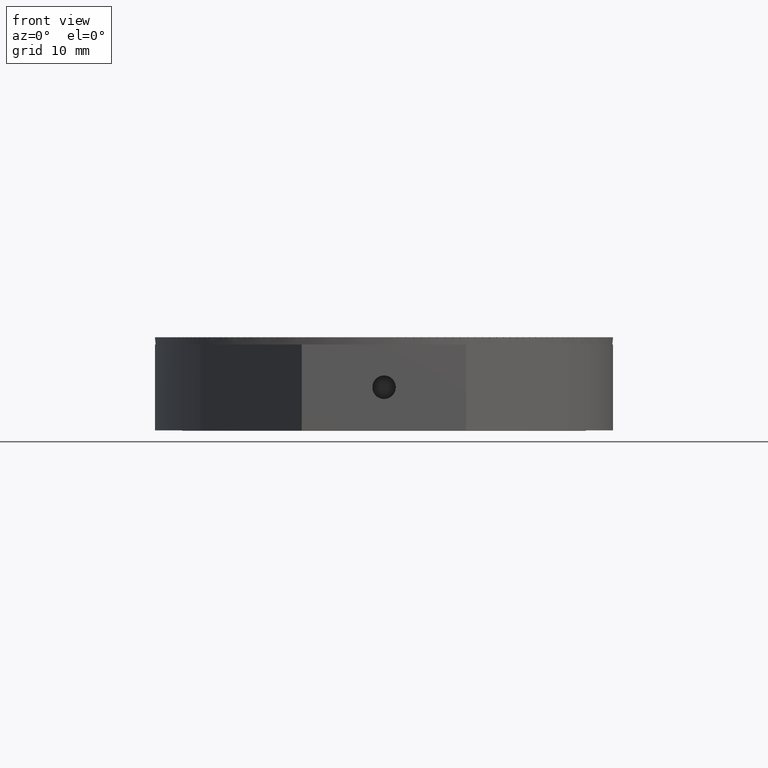
[diagram: clean part render]
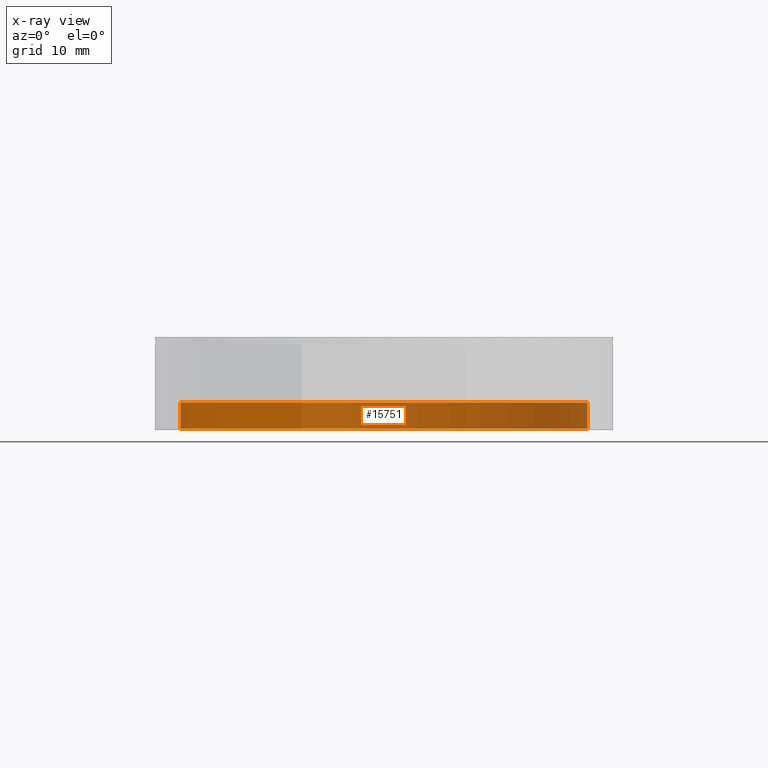
[diagram: x-ray — body ghosted, one internal face saturated and labeled with its STEP entity id]
A machine part, front view, then the same camera in x-ray: the body is ghosted and one INTERNAL B-rep face — a face not visible from any outside direction — is saturated and labeled: STEP entity #15751.
In plain terms, the highlighted cylindrical surface (partial cylindrical patch) has radius 28.5 mm, axis along (0, 0, 1).
Its self-contained STEP definition (entity closure, byte-faithful):
#425 = EDGE_CURVE ( 'NONE', #4499, #54096, #13509, .T. ) ;
#2931 = DIRECTION ( 'NONE',  ( 0.000000000000000000, 0.000000000000000000, 1.000000000000000000 ) ) ;
#4499 = VERTEX_POINT ( 'NONE', #45322 ) ;
#4808 = AXIS2_PLACEMENT_3D ( 'NONE', #14196, #53272, #6190 ) ;
#6190 = DIRECTION ( 'NONE',  ( 0.000000000000000000, 0.000000000000000000, -1.000000000000000000 ) ) ;
#7630 = EDGE_CURVE ( 'NONE', #4499, #19550, #48345, .T. ) ;
#8260 = EDGE_CURVE ( 'NONE', #54096, #43095, #51677, .T. ) ;
#8354 = FACE_OUTER_BOUND ( 'NONE', #35370, .T. ) ;
#9580 = CARTESIAN_POINT ( 'NONE',  ( 0.000000000000000000, -12.05000000000000071, 28.50000000000000000 ) ) ;
#12137 = ORIENTED_EDGE ( 'NONE', *, *, #425, .T. ) ;
#13509 = CIRCLE ( 'NONE', #43190, 28.50000000000000000 ) ;
#14059 = DIRECTION ( 'NONE',  ( -0.000000000000000000, 1.000000000000000000, -0.000000000000000000 ) ) ;
#14196 = CARTESIAN_POINT ( 'NONE',  ( 0.000000000000000000, -8.125000000000008882, 0.000000000000000000 ) ) ;
#15751 = ADVANCED_FACE ( 'NONE', ( #8354 ), #57323, .T. ) ;
#16774 = CARTESIAN_POINT ( 'NONE',  ( 3.490243377569956456E-15, -12.05000000000000071, -28.50000000000000000 ) ) ;
#17195 = DIRECTION ( 'NONE',  ( 0.000000000000000000, 0.000000000000000000, -1.000000000000000000 ) ) ;
#19550 = VERTEX_POINT ( 'NONE', #47898 ) ;
#20489 = ORIENTED_EDGE ( 'NONE', *, *, #8260, .T. ) ;
#20674 = ORIENTED_EDGE ( 'NONE', *, *, #7630, .F. ) ;
#22600 = CARTESIAN_POINT ( 'NONE',  ( 3.490243377569956456E-15, -8.125000000000008882, -28.50000000000000000 ) ) ;
#23193 = ORIENTED_EDGE ( 'NONE', *, *, #56315, .T. ) ;
#28494 = DIRECTION ( 'NONE',  ( -0.000000000000000000, 1.000000000000000000, -0.000000000000000000 ) ) ;
#29707 = VECTOR ( 'NONE', #42063, 1000.000000000000000 ) ;
#35370 = EDGE_LOOP ( 'NONE', ( #12137, #20489, #23193, #20674 ) ) ;
#36555 = CIRCLE ( 'NONE', #4808, 28.50000000000000000 ) ;
#37990 = CARTESIAN_POINT ( 'NONE',  ( 0.000000000000000000, -11.79999999999999361, 0.000000000000000000 ) ) ;
#42063 = DIRECTION ( 'NONE',  ( -0.000000000000000000, 1.000000000000000000, -0.000000000000000000 ) ) ;
#43095 = VERTEX_POINT ( 'NONE', #22600 ) ;
#43190 = AXIS2_PLACEMENT_3D ( 'NONE', #37990, #56584, #17195 ) ;
#45322 = CARTESIAN_POINT ( 'NONE',  ( 0.000000000000000000, -11.79999999999999361, 28.50000000000000000 ) ) ;
#45524 = CARTESIAN_POINT ( 'NONE',  ( 3.490243377569956456E-15, -11.79999999999999361, -28.50000000000000000 ) ) ;
#46494 = AXIS2_PLACEMENT_3D ( 'NONE', #47725, #28494, #2931 ) ;
#47725 = CARTESIAN_POINT ( 'NONE',  ( 0.000000000000000000, -12.05000000000000071, 0.000000000000000000 ) ) ;
#47898 = CARTESIAN_POINT ( 'NONE',  ( 0.000000000000000000, -8.125000000000008882, 28.50000000000000000 ) ) ;
#48090 = VECTOR ( 'NONE', #14059, 1000.000000000000000 ) ;
#48345 = LINE ( 'NONE', #9580, #48090 ) ;
#51677 = LINE ( 'NONE', #16774, #29707 ) ;
#53272 = DIRECTION ( 'NONE',  ( -0.000000000000000000, -1.000000000000000000, -0.000000000000000000 ) ) ;
#54096 = VERTEX_POINT ( 'NONE', #45524 ) ;
#56315 = EDGE_CURVE ( 'NONE', #43095, #19550, #36555, .T. ) ;
#56584 = DIRECTION ( 'NONE',  ( 0.000000000000000000, 1.000000000000000000, 0.000000000000000000 ) ) ;
#57323 = CYLINDRICAL_SURFACE ( 'NONE', #46494, 28.50000000000000000 ) ;